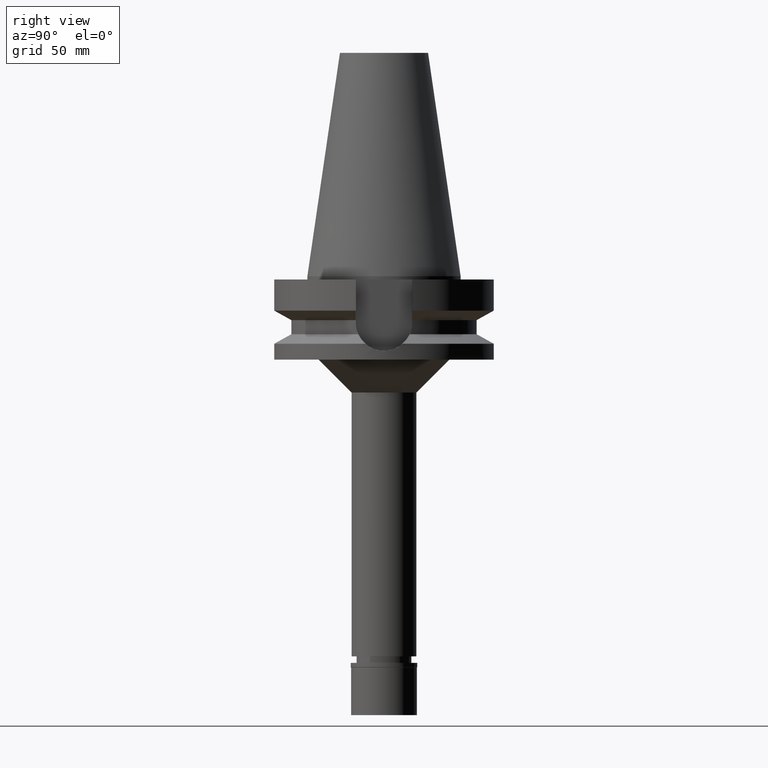
[diagram: clean part render]
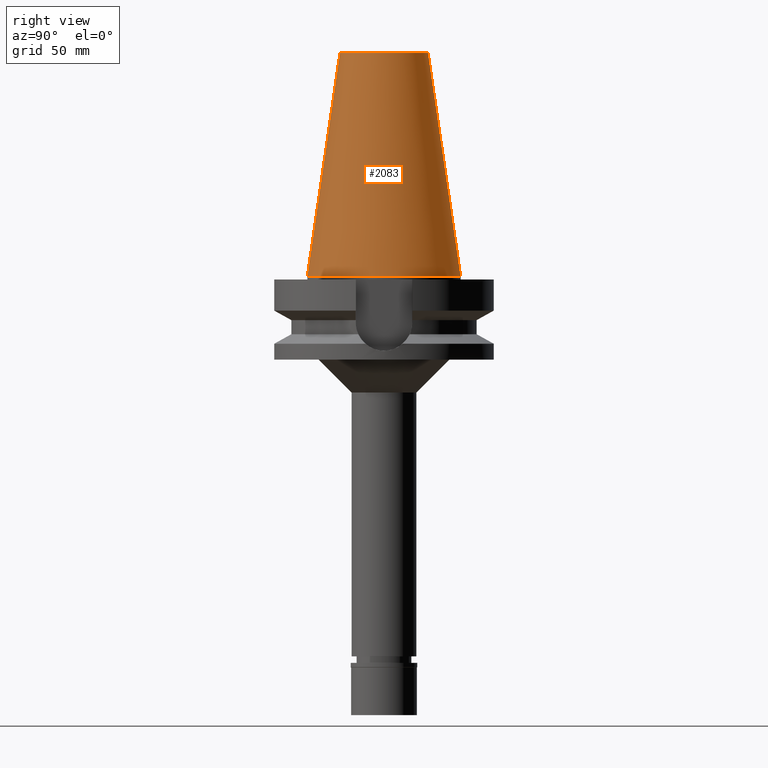
[diagram: same view with one face highlighted and labeled with its STEP entity id]
A machine part, right view. The second image highlights one B-rep face of the part: STEP entity #2083.
In plain terms, the highlighted conical surface has half-angle 8.297 deg.
Its self-contained STEP definition (entity closure, byte-faithful):
#30 = ORIENTED_EDGE ( 'NONE', *, *, #973, .F. ) ;
#79 = VERTEX_POINT ( 'NONE', #2007 ) ;
#85 = DIRECTION ( 'NONE',  ( 0.0000000000000000000, -0.1443043893538948075, -0.9895333461855641000 ) ) ;
#169 = VECTOR ( 'NONE', #2519, 1000.000000000000114 ) ;
#174 = CONICAL_SURFACE ( 'NONE', #572, 27.50221485948000222, 0.1448099680379422438 ) ;
#366 = AXIS2_PLACEMENT_3D ( 'NONE', #1776, #613, #2760 ) ;
#527 = DIRECTION ( 'NONE',  ( 0.0000000000000000000, -1.000000000000000000, 0.0000000000000000000 ) ) ;
#535 = DIRECTION ( 'NONE',  ( 0.0000000000000000000, 1.000000000000000000, 0.0000000000000000000 ) ) ;
#552 = EDGE_CURVE ( 'NONE', #79, #2017, #1734, .T. ) ;
#572 = AXIS2_PLACEMENT_3D ( 'NONE', #1517, #745, #527 ) ;
#585 = LINE ( 'NONE', #1609, #169 ) ;
#613 = DIRECTION ( 'NONE',  ( 0.0000000000000000000, 0.0000000000000000000, -1.000000000000000000 ) ) ;
#710 = ORIENTED_EDGE ( 'NONE', *, *, #2323, .F. ) ;
#726 = CARTESIAN_POINT ( 'NONE',  ( 0.0000000000000000000, -34.92499999999999716, 5.329070518200999791E-13 ) ) ;
#745 = DIRECTION ( 'NONE',  ( 0.0000000000000000000, 0.0000000000000000000, -1.000000000000000000 ) ) ;
#751 = EDGE_LOOP ( 'NONE', ( #2601, #1658, #30, #710 ) ) ;
#790 = CARTESIAN_POINT ( 'NONE',  ( 0.0000000000000000000, 1.847992019912999597E-14, 3.979039320256999774E-13 ) ) ;
#804 = DIRECTION ( 'NONE',  ( 0.0000000000000000000, 0.0000000000000000000, -1.000000000000000000 ) ) ;
#918 = VECTOR ( 'NONE', #85, 1000.000000000000114 ) ;
#973 = EDGE_CURVE ( 'NONE', #1111, #1828, #1793, .T. ) ;
#1111 = VERTEX_POINT ( 'NONE', #2599 ) ;
#1360 = LINE ( 'NONE', #3075, #918 ) ;
#1418 = CARTESIAN_POINT ( 'NONE',  ( 0.0000000000000000000, -20.07942971896000017, 101.7999999999999972 ) ) ;
#1428 = AXIS2_PLACEMENT_3D ( 'NONE', #790, #804, #535 ) ;
#1517 = CARTESIAN_POINT ( 'NONE',  ( 0.0000000000000000000, 1.847992019912999597E-14, 50.89999999999999858 ) ) ;
#1559 = EDGE_CURVE ( 'NONE', #2017, #1828, #1360, .T. ) ;
#1609 = CARTESIAN_POINT ( 'NONE',  ( 0.0000000000000000000, 20.07942971896000017, 101.7999999999999972 ) ) ;
#1658 = ORIENTED_EDGE ( 'NONE', *, *, #1559, .T. ) ;
#1734 = CIRCLE ( 'NONE', #366, 20.07942971896000017 ) ;
#1776 = CARTESIAN_POINT ( 'NONE',  ( 0.0000000000000000000, 1.847992019912999597E-14, 101.7999999999999972 ) ) ;
#1793 = CIRCLE ( 'NONE', #1428, 34.92499999999999716 ) ;
#1828 = VERTEX_POINT ( 'NONE', #726 ) ;
#2007 = CARTESIAN_POINT ( 'NONE',  ( 0.0000000000000000000, 20.07942971896000017, 101.7999999999999972 ) ) ;
#2017 = VERTEX_POINT ( 'NONE', #1418 ) ;
#2083 = ADVANCED_FACE ( 'NONE', ( #2743 ), #174, .T. ) ;
#2323 = EDGE_CURVE ( 'NONE', #79, #1111, #585, .T. ) ;
#2519 = DIRECTION ( 'NONE',  ( 0.0000000000000000000, 0.1443043893538948075, -0.9895333461855641000 ) ) ;
#2599 = CARTESIAN_POINT ( 'NONE',  ( 0.0000000000000000000, 34.92499999999999716, 5.329070518200999791E-13 ) ) ;
#2601 = ORIENTED_EDGE ( 'NONE', *, *, #552, .T. ) ;
#2743 = FACE_OUTER_BOUND ( 'NONE', #751, .T. ) ;
#2760 = DIRECTION ( 'NONE',  ( 0.0000000000000000000, 1.000000000000000000, 0.0000000000000000000 ) ) ;
#3075 = CARTESIAN_POINT ( 'NONE',  ( 0.0000000000000000000, -20.07942971896000017, 101.7999999999999972 ) ) ;